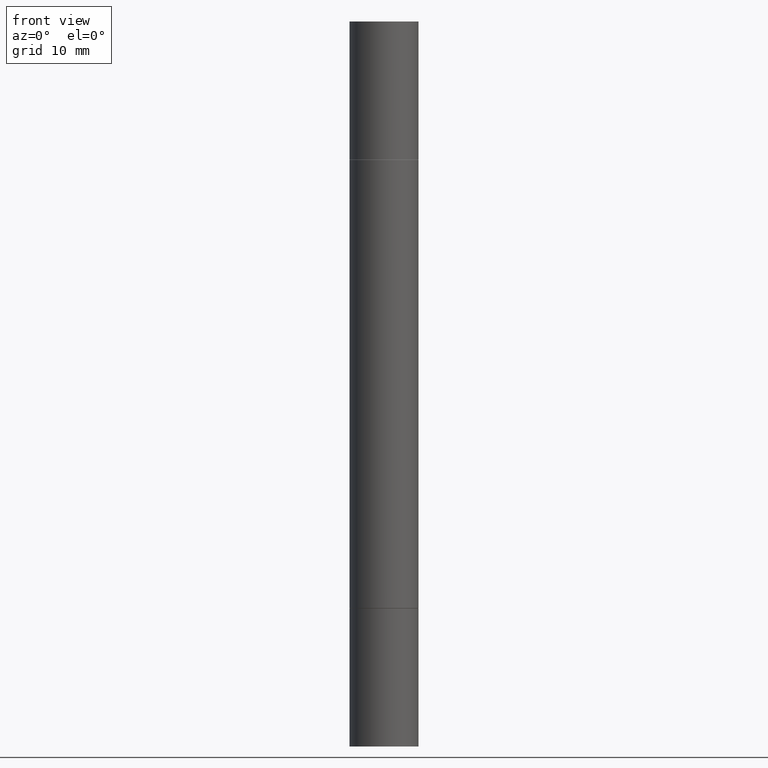
[diagram: clean part render]
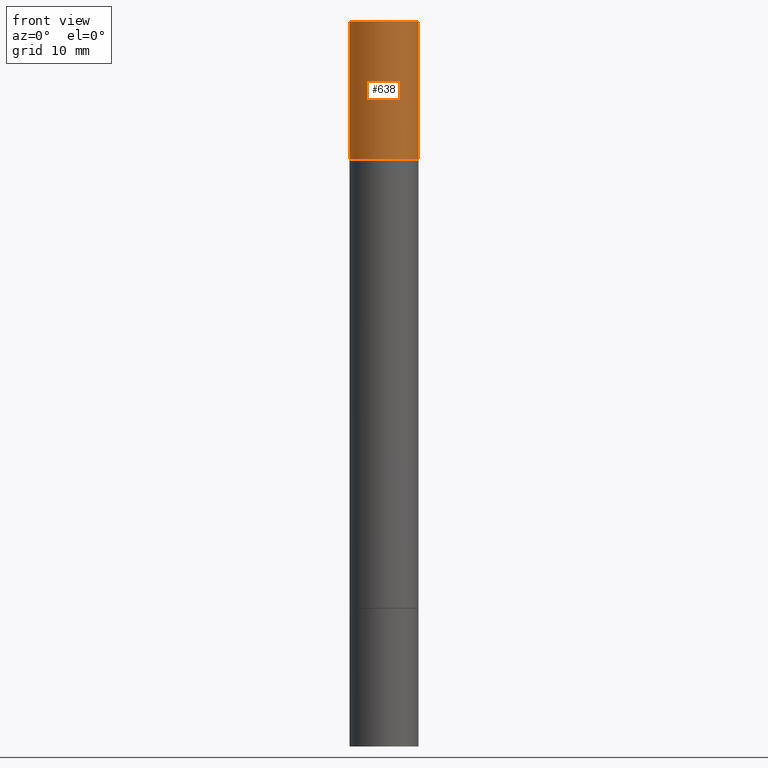
[diagram: same view with one face highlighted and labeled with its STEP entity id]
A machine part, front view. The second image highlights one B-rep face of the part: STEP entity #638.
In plain terms, the highlighted cylindrical surface (edge-blend (fillet) strip) has radius 2.9997 mm, axis along (-0, -0, -1).
Its self-contained STEP definition (entity closure, byte-faithful):
#23 = EDGE_CURVE ( 'NONE', #635, #71, #402, .T. ) ;
#51 = DIRECTION ( 'NONE',  ( -2.445468806185136877E-29, -3.492890411551753071E-15, -1.000000000000000000 ) ) ;
#71 = VERTEX_POINT ( 'NONE', #267 ) ;
#89 = CIRCLE ( 'NONE', #182, 0.1180999999999999966 ) ;
#92 = CARTESIAN_POINT ( 'NONE',  ( 0.000000000000000000, -8.661668626252231138E-15, -2.480299999999999727 ) ) ;
#93 = DIRECTION ( 'NONE',  ( 2.445468806185136597E-29, 3.492890411551752677E-15, 1.000000000000000000 ) ) ;
#105 = CARTESIAN_POINT ( 'NONE',  ( 0.1180999999999999966, -9.486356518486979401E-15, -2.480299999999999727 ) ) ;
#122 = EDGE_CURVE ( 'NONE', #497, #71, #89, .T. ) ;
#129 = ORIENTED_EDGE ( 'NONE', *, *, #439, .F. ) ;
#150 = CARTESIAN_POINT ( 'NONE',  ( 0.1180999999999999966, -8.229404307151675296E-16, 5.463695987328526437E-16 ) ) ;
#160 = DIRECTION ( 'NONE',  ( 1.000000000000000000, -6.982962677686265133E-15, 0.000000000000000000 ) ) ;
#178 = ORIENTED_EDGE ( 'NONE', *, *, #413, .T. ) ;
#182 = AXIS2_PLACEMENT_3D ( 'NONE', #513, #626, #160 ) ;
#193 = DIRECTION ( 'NONE',  ( -2.445468806185136877E-29, -3.492890411551753071E-15, -1.000000000000000000 ) ) ;
#217 = CIRCLE ( 'NONE', #492, 0.1180999999999999966 ) ;
#244 = CARTESIAN_POINT ( 'NONE',  ( -0.1180999999999999966, -7.851443812715413599E-15, -2.480299999999999727 ) ) ;
#267 = CARTESIAN_POINT ( 'NONE',  ( 0.1180999999999999966, -2.472981861132215636E-15, -0.4723999999999995980 ) ) ;
#279 = EDGE_LOOP ( 'NONE', ( #129, #178, #672, #483 ) ) ;
#343 = AXIS2_PLACEMENT_3D ( 'NONE', #92, #495, #390 ) ;
#346 = CARTESIAN_POINT ( 'NONE',  ( 6.065496279980994755E-29, 1.747461519580534218E-18, 5.463695987328526437E-16 ) ) ;
#390 = DIRECTION ( 'NONE',  ( 1.000000000000000000, -6.982962677686265133E-15, 0.000000000000000000 ) ) ;
#402 = LINE ( 'NONE', #105, #405 ) ;
#405 = VECTOR ( 'NONE', #193, 39.37007874015748143 ) ;
#413 = EDGE_CURVE ( 'NONE', #542, #497, #507, .T. ) ;
#439 = EDGE_CURVE ( 'NONE', #542, #635, #217, .T. ) ;
#442 = CYLINDRICAL_SURFACE ( 'NONE', #343, 0.1180999999999999966 ) ;
#452 = DIRECTION ( 'NONE',  ( 1.000000000000000000, -6.982962677686266711E-15, 0.000000000000000000 ) ) ;
#483 = ORIENTED_EDGE ( 'NONE', *, *, #23, .F. ) ;
#492 = AXIS2_PLACEMENT_3D ( 'NONE', #346, #93, #452 ) ;
#495 = DIRECTION ( 'NONE',  ( -2.445468806185136597E-29, -3.492890411551752677E-15, -1.000000000000000000 ) ) ;
#497 = VERTEX_POINT ( 'NONE', #607 ) ;
#503 = VECTOR ( 'NONE', #51, 39.37007874015748143 ) ;
#507 = LINE ( 'NONE', #244, #503 ) ;
#513 = CARTESIAN_POINT ( 'NONE',  ( 4.910256815939136430E-29, -1.648293968897467768E-15, -0.4723999999999995980 ) ) ;
#522 = CARTESIAN_POINT ( 'NONE',  ( -0.1180999999999999966, -1.304844015212474234E-17, 5.463695987328556019E-16 ) ) ;
#542 = VERTEX_POINT ( 'NONE', #522 ) ;
#607 = CARTESIAN_POINT ( 'NONE',  ( -0.1180999999999999966, -1.304844015212474234E-17, -0.4723999999999995980 ) ) ;
#626 = DIRECTION ( 'NONE',  ( 2.445468806185136597E-29, 3.492890411551752677E-15, 1.000000000000000000 ) ) ;
#635 = VERTEX_POINT ( 'NONE', #150 ) ;
#638 = ADVANCED_FACE ( 'NONE', ( #663 ), #442, .T. ) ;
#663 = FACE_OUTER_BOUND ( 'NONE', #279, .T. ) ;
#672 = ORIENTED_EDGE ( 'NONE', *, *, #122, .T. ) ;